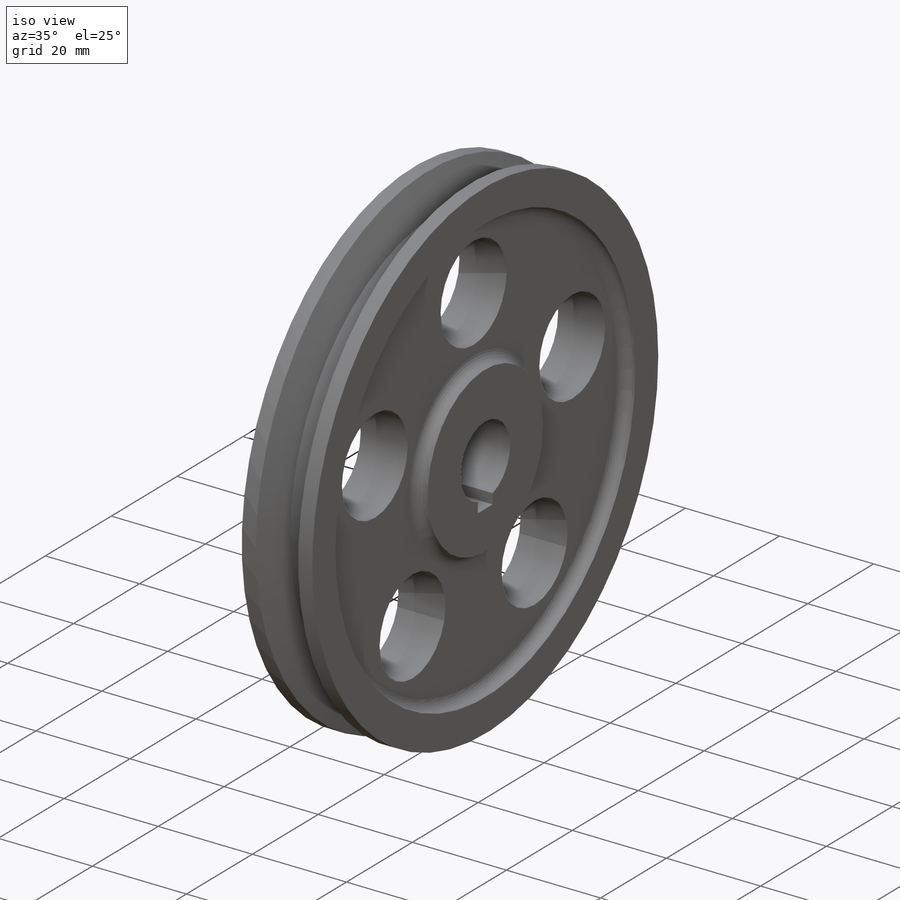
[diagram: iso view]
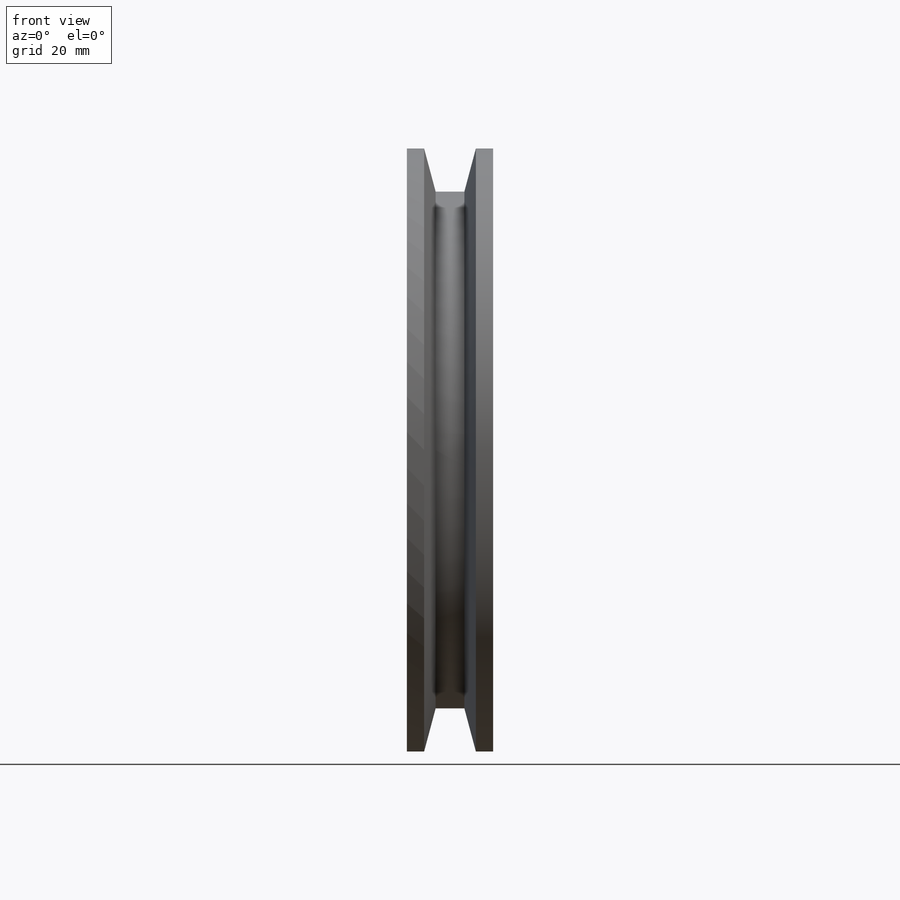
[diagram: front view]
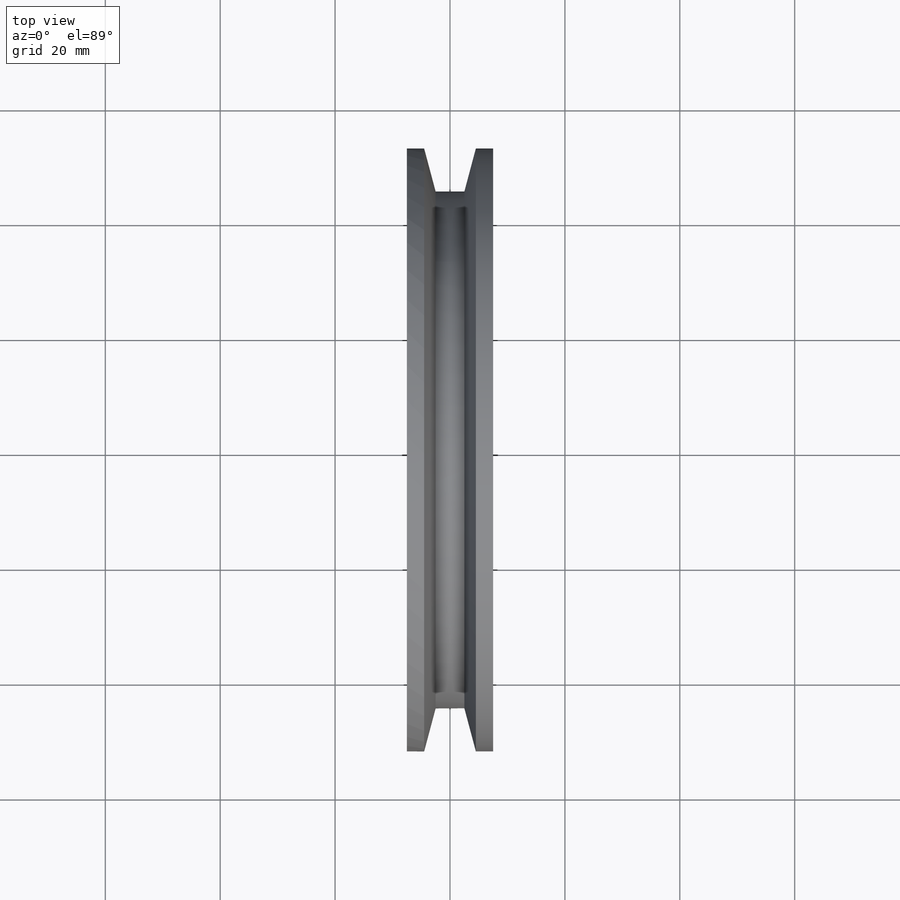
[diagram: top view]
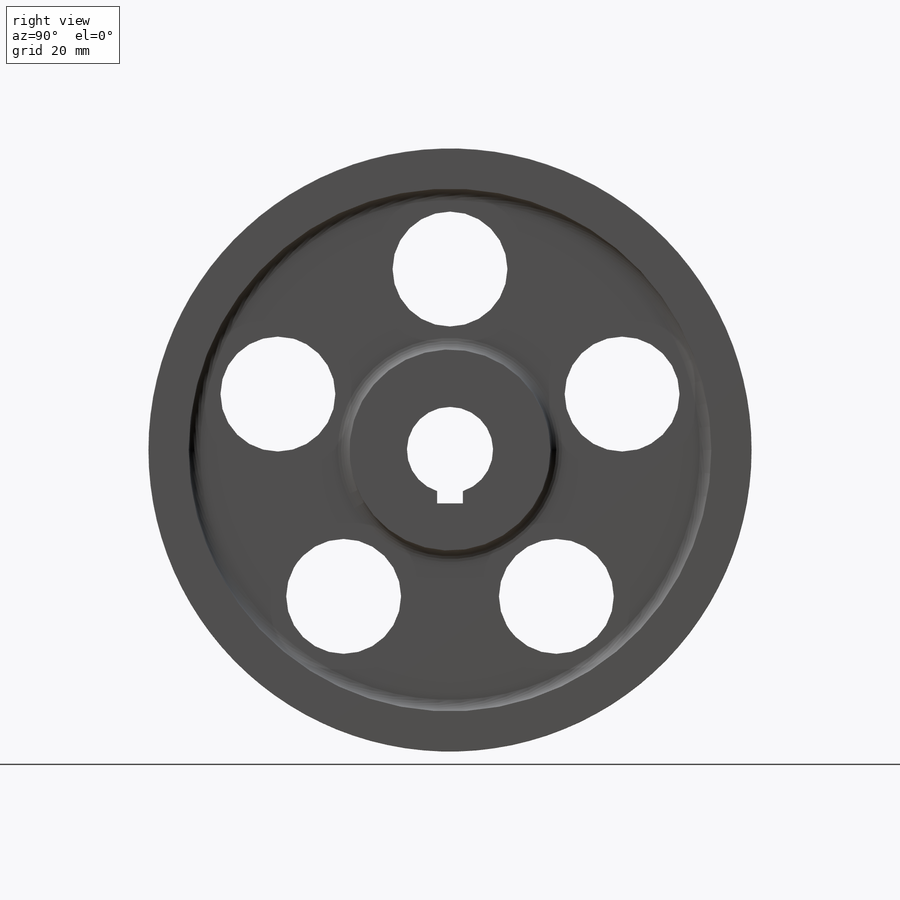
[diagram: right view]
SOLIDWORKS PART (.sldprt)
format: sldprt  version: not decoded by parser v0  size: 283,136 bytes
history: native  units: mm
features: sketch x3, cut_extrude x2, material x1, revolve x1, pattern_circular x1 (+16 scaffold rows collapsed)
feature tree (24):
  scaffold x16  (default folders/planes/origin — collapsed)
  material  "Material <not specified>"
  sketch  "Sketch1"  dims[c1.D1=2.0mm c1.D2=7.5mm c1.D3=7.5mm c1.D4=5.0mm c1.D5=45.0mm c1.D6=10.0mm c1.D7=10.0mm c1.D8=5.0mm c2.D4=5.0mm c2.D8=3.0mm c2.D9=4.0mm c2.D10=3.5mm c3.D10=110.0deg c3.D11=7.5mm c4.D10=4.0mm c4.D9=~4.527759mm c5.D9=110.0deg c5.D10=2.5mm c5.D6=45.0mm c5.D8=7.0mm]
  revolve  "Revolve1"  Angle=360deg
  sketch  "Sketch2"  dims[D1=20.0mm]
  cut_extrude  "Extrude1"  Depth=10mm
  pattern_circular  "CirPattern1"  Count=5 Angle=360deg
  sketch  "Sketch3"  dims[D1=2.3mm D2=4.5mm D3=7.0mm]
  cut_extrude  "Extrude2"  [1 undecoded]
decode coverage: 6 of 7 modeling features carry decoded parameters
note: ~ marks probable driven/reference dimensions
note: 1 parameter value undecoded
note: suppression state not decoded; provenance and decode notes live in map.json
